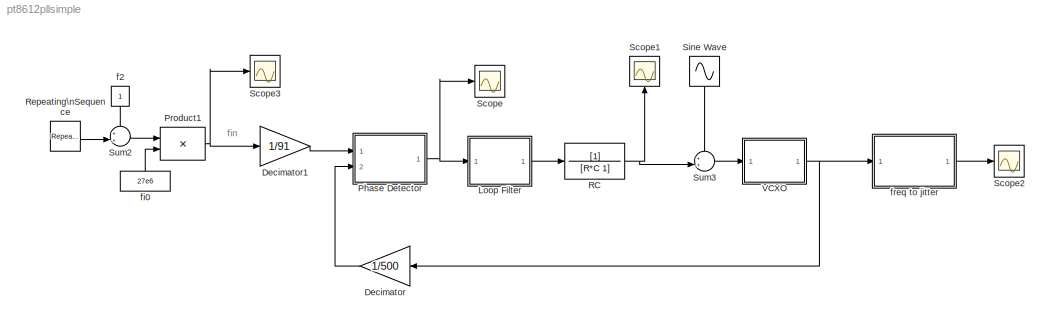
MODEL pt8612pllsimple
KIND model
CONFIG AbsTol = 1e-10
CONFIG FixedStep = auto
CONFIG MaxStep = auto
CONFIG MinStep = auto
CONFIG RelTol = 1e-7
CONFIG Solver = ode45
CONFIG SolverMode = Auto
CONFIG StartTime = 0.0
CONFIG StopTime = 10
BLOCK [Gain] Decimator
  Gain = 1/500
BLOCK [Gain] Decimator1
  Gain = 1/91
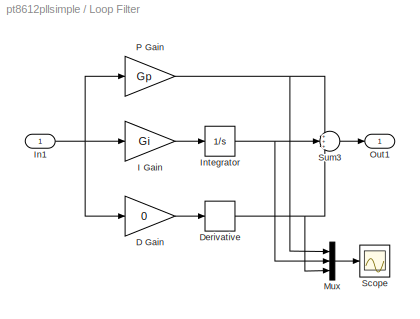
BLOCK [SubSystem] Loop Filter
  Ports = [1, 1]
  TreatAsAtomicUnit = off
BLOCK [Gain] Loop Filter/D Gain
  Gain = 0
BLOCK [Derivative] Loop Filter/Derivative
BLOCK [Gain] Loop Filter/I Gain
  Gain = Gi
BLOCK [Inport] Loop Filter/In1
BLOCK [Integrator] Loop Filter/Integrator
  Ports = [1, 1]
BLOCK [Mux] Loop Filter/Mux
  DisplayOption = bar
  Inputs = 3
  Ports = [3, 1]
BLOCK [Outport] Loop Filter/Out1
BLOCK [Gain] Loop Filter/P Gain
  Gain = Gp
BLOCK [Scope] Loop Filter/Scope
  DataFormat = StructureWithTime
  LimitDataPoints = off
  NumInputPorts = 1
  Ports = [1]
  SaveName = ScopeData2
  YMax = 0.85
  YMin = 0
  ZoomMode = yonly
BLOCK [Sum] Loop Filter/Sum3
  IconShape = round
  InputSameDT = off
  Inputs = +++
  OutDataTypeMode = Inherit via internal rule
  Ports = [3, 1]
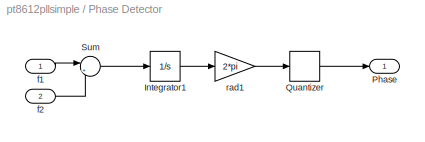
BLOCK [SubSystem] Phase Detector
  Ports = [2, 1]
  TreatAsAtomicUnit = off
BLOCK [Integrator] Phase Detector/Integrator1
  Ports = [1, 1]
BLOCK [Outport] Phase Detector/Phase
BLOCK [Quantizer] Phase Detector/Quantizer
  QuantizationInterval = 2*pi/500
BLOCK [Sum] Phase Detector/Sum
  IconShape = round
  InputSameDT = off
  Inputs = |+-
  OutDataTypeMode = Inherit via internal rule
  Ports = [2, 1]
BLOCK [Inport] Phase Detector/f1
BLOCK [Inport] Phase Detector/f2
  Port = 2
BLOCK [Gain] Phase Detector/rad1
  Gain = 2*pi
BLOCK [Product] Product1
  InputSameDT = off
  Ports = [2, 1]
BLOCK [TransferFcn] RC
  Denominator = [R*C 1]
BLOCK [Reference] Repeating\nSequence  REF=simulink/Sources/Repeating\nSequence
  Ports = [0, 1]
  SourceBlock = simulink/Sources/Repeating\nSequence
  SourceType = Repeating table
  rep_seq_t = [0 1 1 10]
  rep_seq_y = [0 0 1 1]*0
BLOCK [Scope] Scope
  DataFormat = StructureWithTime
  LimitDataPoints = off
  NumInputPorts = 1
  Ports = [1]
  YMax = 1.9
  YMin = 5.55112e-017
  ZoomMode = xonly
BLOCK [Scope] Scope1
  DataFormat = StructureWithTime
  LimitDataPoints = off
  NumInputPorts = 1
  Ports = [1]
  SaveName = ScopeData1
  TimeRange = 10
  YMax = 0.2
  YMin = -0.35
BLOCK [Scope] Scope2
  DataFormat = StructureWithTime
  LimitDataPoints = off
  NumInputPorts = 1
  Ports = [1]
  SaveName = ScopeData3
  TimeRange = 10
  YMax = 0.8
  YMin = -1
  ZoomMode = xonly
BLOCK [Scope] Scope3
  DataFormat = StructureWithTime
  LimitDataPoints = off
  NumInputPorts = 1
  Ports = [1]
  SaveName = ScopeData4
  YMax = 1.9
  YMin = 5.55112e-017
  ZoomMode = xonly
BLOCK [Sin] Sine Wave
  Frequency = 80
  SampleTime = 0
  SineType = Time based
BLOCK [Sum] Sum2
  IconShape = round
  InputSameDT = off
  Inputs = ++|
  OutDataTypeMode = Inherit via internal rule
  Ports = [2, 1]
BLOCK [Sum] Sum3
  IconShape = round
  InputSameDT = off
  Inputs = ++|
  OutDataTypeMode = Inherit via internal rule
  Ports = [2, 1]
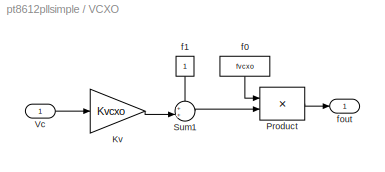
BLOCK [SubSystem] VCXO
  Ports = [1, 1]
  TreatAsAtomicUnit = off
BLOCK [Gain] VCXO/Kv
  Gain = Kvcxo
BLOCK [Product] VCXO/Product
  InputSameDT = off
  Ports = [2, 1]
BLOCK [Sum] VCXO/Sum1
  IconShape = round
  InputSameDT = off
  Inputs = ++|
  OutDataTypeMode = Inherit via internal rule
  Ports = [2, 1]
BLOCK [Inport] VCXO/Vc
BLOCK [Constant] VCXO/f0
  Value = fvcxo
BLOCK [Constant] VCXO/f1
BLOCK [Outport] VCXO/fout
BLOCK [Constant] f2
BLOCK [Constant] fi0
  Value = 27e6
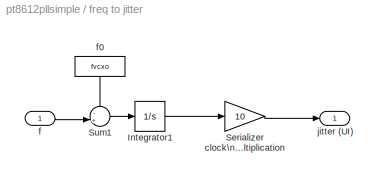
BLOCK [SubSystem] freq to jitter
  Ports = [1, 1]
  TreatAsAtomicUnit = off
BLOCK [Integrator] freq to jitter/Integrator1
  Ports = [1, 1]
BLOCK [Gain] freq to jitter/Serializer clock\nmultiplication
  Gain = 10
BLOCK [Sum] freq to jitter/Sum1
  IconShape = round
  InputSameDT = off
  Inputs = -+|
  OutDataTypeMode = Inherit via internal rule
  Ports = [2, 1]
BLOCK [Inport] freq to jitter/f
BLOCK [Constant] freq to jitter/f0
  Value = fvcxo
BLOCK [Outport] freq to jitter/jitter (UI)
ANNOTATION (root): fin
LINE Decimator1:1 -> Phase Detector:1
LINE Decimator:1 -> Phase Detector:2
LINE Loop Filter/D Gain:1 -> Loop Filter/Derivative:1
NET Loop Filter/Derivative:1 -> Loop Filter/Mux:3, Loop Filter/Sum3:3
LINE Loop Filter/I Gain:1 -> Loop Filter/Integrator:1
NET Loop Filter/In1:1 -> Loop Filter/D Gain:1, Loop Filter/I Gain:1, Loop Filter/P Gain:1
NET Loop Filter/Integrator:1 -> Loop Filter/Mux:2, Loop Filter/Sum3:2
LINE Loop Filter/Mux:1 -> Loop Filter/Scope:1
NET Loop Filter/P Gain:1 -> Loop Filter/Mux:1, Loop Filter/Sum3:1
LINE Loop Filter/Sum3:1 -> Loop Filter/Out1:1
LINE Loop Filter:1 -> RC:1
LINE Phase Detector/Integrator1:1 -> Phase Detector/rad1:1
LINE Phase Detector/Quantizer:1 -> Phase Detector/Phase:1
LINE Phase Detector/Sum:1 -> Phase Detector/Integrator1:1
LINE Phase Detector/f1:1 -> Phase Detector/Sum:1
LINE Phase Detector/f2:1 -> Phase Detector/Sum:2
LINE Phase Detector/rad1:1 -> Phase Detector/Quantizer:1
NET Phase Detector:1 -> Loop Filter:1, Scope:1
NET Product1:1 -> Decimator1:1, Scope3:1
NET RC:1 -> Scope1:1, Sum3:2
LINE Repeating\nSequence:1 -> Sum2:2
LINE Sine Wave:1 -> Sum3:1
LINE Sum2:1 -> Product1:1
LINE Sum3:1 -> VCXO:1
LINE VCXO/Kv:1 -> VCXO/Sum1:2
LINE VCXO/Product:1 -> VCXO/fout:1
LINE VCXO/Sum1:1 -> VCXO/Product:2
LINE VCXO/Vc:1 -> VCXO/Kv:1
LINE VCXO/f0:1 -> VCXO/Product:1
LINE VCXO/f1:1 -> VCXO/Sum1:1
NET VCXO:1 -> Decimator:1, freq to jitter:1
LINE f2:1 -> Sum2:1
LINE fi0:1 -> Product1:2
LINE freq to jitter/Integrator1:1 -> freq to jitter/Serializer clock\nmultiplication:1
LINE freq to jitter/Serializer clock\nmultiplication:1 -> freq to jitter/jitter (UI):1
LINE freq to jitter/Sum1:1 -> freq to jitter/Integrator1:1
LINE freq to jitter/f0:1 -> freq to jitter/Sum1:1
LINE freq to jitter/f:1 -> freq to jitter/Sum1:2
LINE freq to jitter:1 -> Scope2:1
note: NET lines group one-source signal fan-out (src -> all destinations, sorted); 1:1 wires keep LINE
